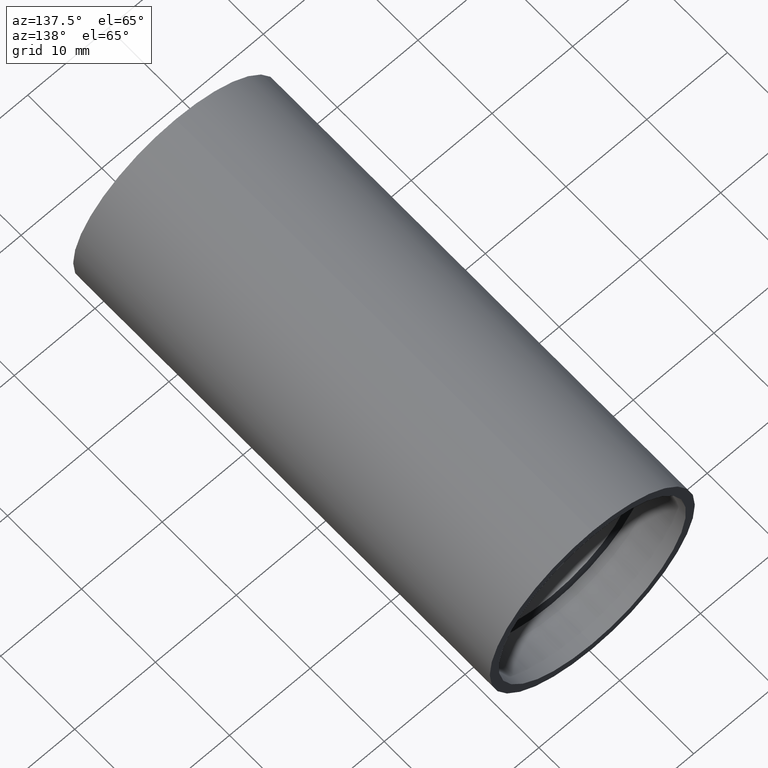
[diagram: clean part render]
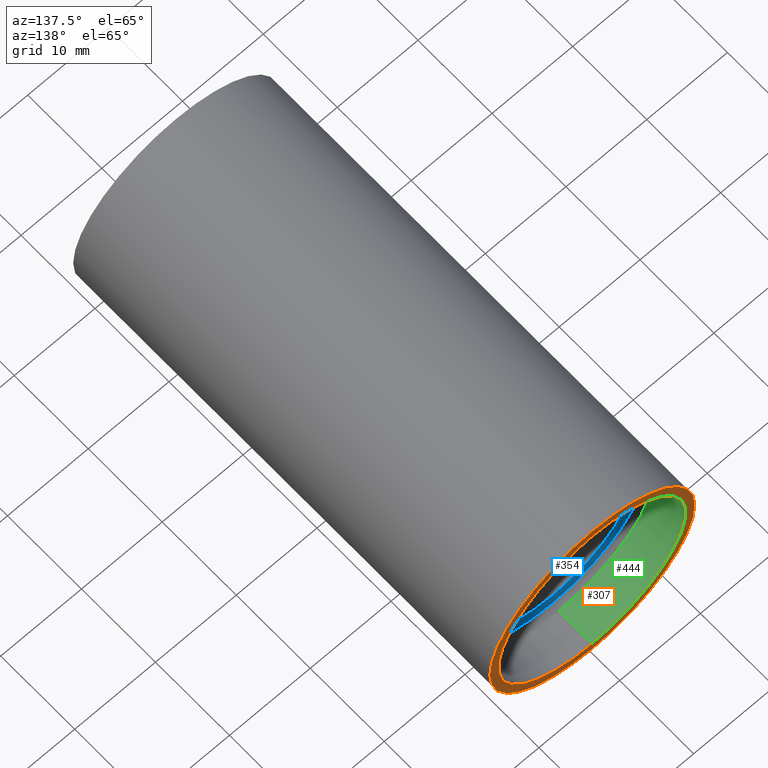
[diagram: same view with three faces highlighted in distinct colors, each labeled with its STEP entity id]
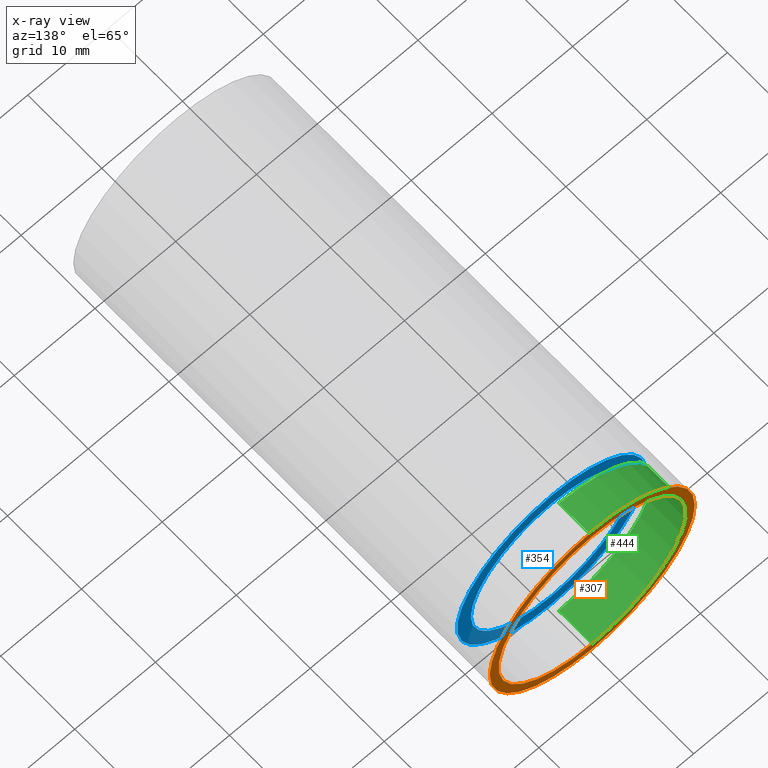
[diagram: x-ray of the same camera — body ghosted, the three highlighted faces saturated]
A machine part, auxiliary view with three faces highlighted in distinct colors.
The next image is the same camera in x-ray (body ghosted, the three faces saturated) — at least one of them is partly hidden behind the body in this view.
Their STEP definitions:

[orange] entity #307 — the highlighted planar face has unit normal (0, -1, 0).
#4 = EDGE_LOOP ( 'NONE', ( #275, #221 ) ) ;
#26 = CIRCLE ( 'NONE', #531, 12.70000000000001900 ) ;
#41 = CARTESIAN_POINT ( 'NONE',  ( 0.0000000000000000000, 56.29999999999999000, 11.60000000000003200 ) ) ;
#49 = EDGE_CURVE ( 'NONE', #55, #169, #26, .T. ) ;
#54 = CARTESIAN_POINT ( 'NONE',  ( 0.0000000000000000000, 56.29999999999999000, 0.0000000000000000000 ) ) ;
#55 = VERTEX_POINT ( 'NONE', #469 ) ;
#92 = DIRECTION ( 'NONE',  ( 0.0000000000000000000, 0.0000000000000000000, 1.000000000000000000 ) ) ;
#105 = DIRECTION ( 'NONE',  ( -0.0000000000000000000, 1.000000000000000000, -0.0000000000000000000 ) ) ;
#118 = EDGE_CURVE ( 'NONE', #567, #402, #610, .T. ) ;
#130 = DIRECTION ( 'NONE',  ( 0.0000000000000000000, 0.0000000000000000000, 1.000000000000000000 ) ) ;
#149 = ORIENTED_EDGE ( 'NONE', *, *, #498, .F. ) ;
#169 = VERTEX_POINT ( 'NONE', #355 ) ;
#171 = DIRECTION ( 'NONE',  ( 0.0000000000000000000, 0.0000000000000000000, 1.000000000000000000 ) ) ;
#185 = DIRECTION ( 'NONE',  ( -0.0000000000000000000, 1.000000000000000000, -0.0000000000000000000 ) ) ;
#194 = DIRECTION ( 'NONE',  ( -0.0000000000000000000, 1.000000000000000000, -0.0000000000000000000 ) ) ;
#221 = ORIENTED_EDGE ( 'NONE', *, *, #359, .T. ) ;
#269 = DIRECTION ( 'NONE',  ( 0.0000000000000000000, -0.0000000000000000000, -1.000000000000000000 ) ) ;
#275 = ORIENTED_EDGE ( 'NONE', *, *, #49, .T. ) ;
#278 = DIRECTION ( 'NONE',  ( -0.0000000000000000000, 1.000000000000000000, -0.0000000000000000000 ) ) ;
#307 = ADVANCED_FACE ( 'NONE', ( #508, #432 ), #557, .F. ) ;
#318 = ORIENTED_EDGE ( 'NONE', *, *, #118, .F. ) ;
#328 = AXIS2_PLACEMENT_3D ( 'NONE', #390, #194, #583 ) ;
#330 = CIRCLE ( 'NONE', #513, 12.70000000000001900 ) ;
#355 = CARTESIAN_POINT ( 'NONE',  ( 1.555301434917140800E-015, 56.29999999999999000, -12.70000000000001900 ) ) ;
#359 = EDGE_CURVE ( 'NONE', #169, #55, #330, .T. ) ;
#388 = EDGE_LOOP ( 'NONE', ( #149, #318 ) ) ;
#390 = CARTESIAN_POINT ( 'NONE',  ( 0.0000000000000000000, 56.29999999999999000, 0.0000000000000000000 ) ) ;
#402 = VERTEX_POINT ( 'NONE', #41 ) ;
#411 = CARTESIAN_POINT ( 'NONE',  ( 11.60000000000003200, 56.29999999999998300, 0.0000000000000000000 ) ) ;
#432 = FACE_OUTER_BOUND ( 'NONE', #4, .T. ) ;
#460 = DIRECTION ( 'NONE',  ( 0.0000000000000000000, -1.000000000000000000, 0.0000000000000000000 ) ) ;
#469 = CARTESIAN_POINT ( 'NONE',  ( 0.0000000000000000000, 56.29999999999999000, 12.70000000000001900 ) ) ;
#498 = EDGE_CURVE ( 'NONE', #402, #567, #577, .T. ) ;
#508 = FACE_BOUND ( 'NONE', #388, .T. ) ;
#513 = AXIS2_PLACEMENT_3D ( 'NONE', #573, #185, #92 ) ;
#531 = AXIS2_PLACEMENT_3D ( 'NONE', #566, #278, #130 ) ;
#557 = PLANE ( 'NONE',  #570 ) ;
#566 = CARTESIAN_POINT ( 'NONE',  ( 0.0000000000000000000, 56.29999999999999000, 0.0000000000000000000 ) ) ;
#567 = VERTEX_POINT ( 'NONE', #578 ) ;
#570 = AXIS2_PLACEMENT_3D ( 'NONE', #411, #460, #269 ) ;
#573 = CARTESIAN_POINT ( 'NONE',  ( 0.0000000000000000000, 56.29999999999999000, 0.0000000000000000000 ) ) ;
#577 = CIRCLE ( 'NONE', #328, 11.60000000000003200 ) ;
#578 = CARTESIAN_POINT ( 'NONE',  ( 1.420590287010933700E-015, 56.29999999999999000, -11.60000000000003200 ) ) ;
#583 = DIRECTION ( 'NONE',  ( 0.0000000000000000000, 0.0000000000000000000, 1.000000000000000000 ) ) ;
#609 = AXIS2_PLACEMENT_3D ( 'NONE', #54, #105, #171 ) ;
#610 = CIRCLE ( 'NONE', #609, 11.60000000000003200 ) ;

[blue] entity #354 — the highlighted planar face has unit normal (0, -1, 0).
#15 = DIRECTION ( 'NONE',  ( 0.0000000000000000000, 0.0000000000000000000, 1.000000000000000000 ) ) ;
#20 = CIRCLE ( 'NONE', #322, 11.70000000000001000 ) ;
#38 = DIRECTION ( 'NONE',  ( 0.0000000000000000000, 0.0000000000000000000, 1.000000000000000000 ) ) ;
#52 = ORIENTED_EDGE ( 'NONE', *, *, #257, .T. ) ;
#53 = AXIS2_PLACEMENT_3D ( 'NONE', #246, #299, #379 ) ;
#57 = VERTEX_POINT ( 'NONE', #156 ) ;
#69 = CARTESIAN_POINT ( 'NONE',  ( 10.00000000000002000, 50.79999999999997600, 0.0000000000000000000 ) ) ;
#83 = DIRECTION ( 'NONE',  ( -0.0000000000000000000, 1.000000000000000000, -0.0000000000000000000 ) ) ;
#104 = FACE_OUTER_BOUND ( 'NONE', #437, .T. ) ;
#108 = CARTESIAN_POINT ( 'NONE',  ( 0.0000000000000000000, 50.79999999999998300, 10.00000000000002000 ) ) ;
#123 = CARTESIAN_POINT ( 'NONE',  ( 0.0000000000000000000, 50.79999999999998300, 11.70000000000001000 ) ) ;
#136 = ORIENTED_EDGE ( 'NONE', *, *, #415, .F. ) ;
#156 = CARTESIAN_POINT ( 'NONE',  ( 1.224646799147355400E-015, 50.79999999999998300, -10.00000000000002000 ) ) ;
#158 = AXIS2_PLACEMENT_3D ( 'NONE', #524, #83, #38 ) ;
#207 = CARTESIAN_POINT ( 'NONE',  ( 0.0000000000000000000, 50.79999999999998300, 0.0000000000000000000 ) ) ;
#208 = AXIS2_PLACEMENT_3D ( 'NONE', #579, #293, #430 ) ;
#213 = ORIENTED_EDGE ( 'NONE', *, *, #451, .F. ) ;
#246 = CARTESIAN_POINT ( 'NONE',  ( 0.0000000000000000000, 50.79999999999998300, 0.0000000000000000000 ) ) ;
#257 = EDGE_CURVE ( 'NONE', #329, #409, #20, .T. ) ;
#264 = PLANE ( 'NONE',  #447 ) ;
#293 = DIRECTION ( 'NONE',  ( -0.0000000000000000000, 1.000000000000000000, -0.0000000000000000000 ) ) ;
#298 = VERTEX_POINT ( 'NONE', #108 ) ;
#299 = DIRECTION ( 'NONE',  ( -0.0000000000000000000, 1.000000000000000000, -0.0000000000000000000 ) ) ;
#303 = EDGE_LOOP ( 'NONE', ( #136, #213 ) ) ;
#310 = CIRCLE ( 'NONE', #208, 10.00000000000002000 ) ;
#311 = DIRECTION ( 'NONE',  ( -0.0000000000000000000, 1.000000000000000000, -0.0000000000000000000 ) ) ;
#322 = AXIS2_PLACEMENT_3D ( 'NONE', #207, #311, #15 ) ;
#329 = VERTEX_POINT ( 'NONE', #123 ) ;
#354 = ADVANCED_FACE ( 'NONE', ( #371, #104 ), #264, .F. ) ;
#371 = FACE_BOUND ( 'NONE', #303, .T. ) ;
#379 = DIRECTION ( 'NONE',  ( 0.0000000000000000000, 0.0000000000000000000, 1.000000000000000000 ) ) ;
#381 = CARTESIAN_POINT ( 'NONE',  ( 1.432836755002404700E-015, 50.79999999999998300, -11.70000000000001000 ) ) ;
#409 = VERTEX_POINT ( 'NONE', #381 ) ;
#415 = EDGE_CURVE ( 'NONE', #298, #57, #596, .T. ) ;
#430 = DIRECTION ( 'NONE',  ( 0.0000000000000000000, 0.0000000000000000000, 1.000000000000000000 ) ) ;
#437 = EDGE_LOOP ( 'NONE', ( #52, #589 ) ) ;
#447 = AXIS2_PLACEMENT_3D ( 'NONE', #69, #516, #555 ) ;
#451 = EDGE_CURVE ( 'NONE', #57, #298, #310, .T. ) ;
#516 = DIRECTION ( 'NONE',  ( 0.0000000000000000000, -1.000000000000000000, 0.0000000000000000000 ) ) ;
#524 = CARTESIAN_POINT ( 'NONE',  ( 0.0000000000000000000, 50.79999999999998300, 0.0000000000000000000 ) ) ;
#534 = CIRCLE ( 'NONE', #53, 11.70000000000001000 ) ;
#555 = DIRECTION ( 'NONE',  ( 0.0000000000000000000, -0.0000000000000000000, -1.000000000000000000 ) ) ;
#579 = CARTESIAN_POINT ( 'NONE',  ( 0.0000000000000000000, 50.79999999999998300, 0.0000000000000000000 ) ) ;
#582 = EDGE_CURVE ( 'NONE', #409, #329, #534, .T. ) ;
#589 = ORIENTED_EDGE ( 'NONE', *, *, #582, .T. ) ;
#596 = CIRCLE ( 'NONE', #158, 10.00000000000002000 ) ;

[green] entity #444 — the highlighted cylindrical surface (partial cylindrical patch) has radius 11.6 mm, axis along (-0, 1, -0).
#10 = DIRECTION ( 'NONE',  ( 0.0000000000000000000, 0.0000000000000000000, 1.000000000000000000 ) ) ;
#41 = CARTESIAN_POINT ( 'NONE',  ( 0.0000000000000000000, 56.29999999999999000, 11.60000000000003200 ) ) ;
#46 = CARTESIAN_POINT ( 'NONE',  ( 0.0000000000000000000, 161.3761669434274500, 11.60000000000003300 ) ) ;
#54 = CARTESIAN_POINT ( 'NONE',  ( 0.0000000000000000000, 56.29999999999999000, 0.0000000000000000000 ) ) ;
#105 = DIRECTION ( 'NONE',  ( -0.0000000000000000000, 1.000000000000000000, -0.0000000000000000000 ) ) ;
#112 = ORIENTED_EDGE ( 'NONE', *, *, #518, .F. ) ;
#118 = EDGE_CURVE ( 'NONE', #567, #402, #610, .T. ) ;
#128 = EDGE_CURVE ( 'NONE', #558, #567, #268, .T. ) ;
#137 = ORIENTED_EDGE ( 'NONE', *, *, #227, .F. ) ;
#138 = DIRECTION ( 'NONE',  ( -0.0000000000000000000, 1.000000000000000000, -0.0000000000000000000 ) ) ;
#171 = DIRECTION ( 'NONE',  ( 0.0000000000000000000, 0.0000000000000000000, 1.000000000000000000 ) ) ;
#184 = EDGE_LOOP ( 'NONE', ( #137, #231, #603, #112 ) ) ;
#227 = EDGE_CURVE ( 'NONE', #558, #539, #403, .T. ) ;
#231 = ORIENTED_EDGE ( 'NONE', *, *, #128, .T. ) ;
#268 = LINE ( 'NONE', #369, #406 ) ;
#285 = AXIS2_PLACEMENT_3D ( 'NONE', #542, #598, #10 ) ;
#288 = LINE ( 'NONE', #46, #433 ) ;
#290 = DIRECTION ( 'NONE',  ( 0.0000000000000000000, 0.0000000000000000000, 1.000000000000000000 ) ) ;
#292 = AXIS2_PLACEMENT_3D ( 'NONE', #337, #138, #290 ) ;
#295 = DIRECTION ( 'NONE',  ( -0.0000000000000000000, 1.000000000000000000, -0.0000000000000000000 ) ) ;
#337 = CARTESIAN_POINT ( 'NONE',  ( 0.0000000000000000000, 161.3761669434274500, 0.0000000000000000000 ) ) ;
#348 = CARTESIAN_POINT ( 'NONE',  ( 1.420590287010933900E-015, 51.79999999999998300, -11.60000000000003300 ) ) ;
#369 = CARTESIAN_POINT ( 'NONE',  ( 1.420590287010933900E-015, 161.3761669434274500, -11.60000000000003300 ) ) ;
#402 = VERTEX_POINT ( 'NONE', #41 ) ;
#403 = CIRCLE ( 'NONE', #285, 11.60000000000003300 ) ;
#406 = VECTOR ( 'NONE', #553, 1000.000000000000000 ) ;
#433 = VECTOR ( 'NONE', #295, 1000.000000000000000 ) ;
#444 = ADVANCED_FACE ( 'NONE', ( #446 ), #546, .F. ) ;
#446 = FACE_OUTER_BOUND ( 'NONE', #184, .T. ) ;
#480 = CARTESIAN_POINT ( 'NONE',  ( 0.0000000000000000000, 51.79999999999998300, 11.60000000000003300 ) ) ;
#518 = EDGE_CURVE ( 'NONE', #539, #402, #288, .T. ) ;
#539 = VERTEX_POINT ( 'NONE', #480 ) ;
#542 = CARTESIAN_POINT ( 'NONE',  ( 0.0000000000000000000, 51.79999999999998300, 0.0000000000000000000 ) ) ;
#546 = CYLINDRICAL_SURFACE ( 'NONE', #292, 11.60000000000003300 ) ;
#553 = DIRECTION ( 'NONE',  ( -0.0000000000000000000, 1.000000000000000000, -0.0000000000000000000 ) ) ;
#558 = VERTEX_POINT ( 'NONE', #348 ) ;
#567 = VERTEX_POINT ( 'NONE', #578 ) ;
#578 = CARTESIAN_POINT ( 'NONE',  ( 1.420590287010933700E-015, 56.29999999999999000, -11.60000000000003200 ) ) ;
#598 = DIRECTION ( 'NONE',  ( -0.0000000000000000000, 1.000000000000000000, -0.0000000000000000000 ) ) ;
#603 = ORIENTED_EDGE ( 'NONE', *, *, #118, .T. ) ;
#609 = AXIS2_PLACEMENT_3D ( 'NONE', #54, #105, #171 ) ;
#610 = CIRCLE ( 'NONE', #609, 11.60000000000003200 ) ;